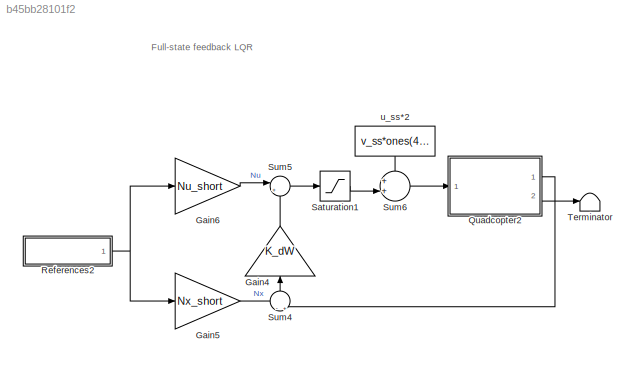
MODEL slx_b45bb28101f2
KIND model
CONFIG AbsTol = auto
CONFIG EnableMultiTasking = off
CONFIG FixedStep = auto
CONFIG MaxStep = auto
CONFIG MinStep = auto
CONFIG RelTol = 1e-3
CONFIG SampleTimeConstraint = Unconstrained
CONFIG Solver = VariableStepAuto
CONFIG SolverName = VariableStepAuto
CONFIG StartTime = 0.0
CONFIG StopTime = Tmax
BLOCK [Constant]  u_ss*2
  SampleTime = Ts
  Value = v_ss*ones(4,1)
BLOCK [Gain] Gain4
  Gain = K_dW
  Multiplication = Matrix(K*u)
  OutDataTypeStr = Inherit: Inherit via internal rule
  ParamDataTypeStr = Inherit: Inherit via internal rule
  SaturateOnIntegerOverflow = off
BLOCK [Gain] Gain5
  Gain = Nx_short
  Multiplication = Matrix(K*u)
  OutDataTypeStr = Inherit: Inherit via internal rule
  ParamDataTypeStr = Inherit: Inherit via internal rule
  SaturateOnIntegerOverflow = off
BLOCK [Gain] Gain6
  Gain = Nu_short
  Multiplication = Matrix(K*u)
  OutDataTypeStr = Inherit: Inherit via internal rule
  ParamDataTypeStr = Inherit: Inherit via internal rule
  SaturateOnIntegerOverflow = off
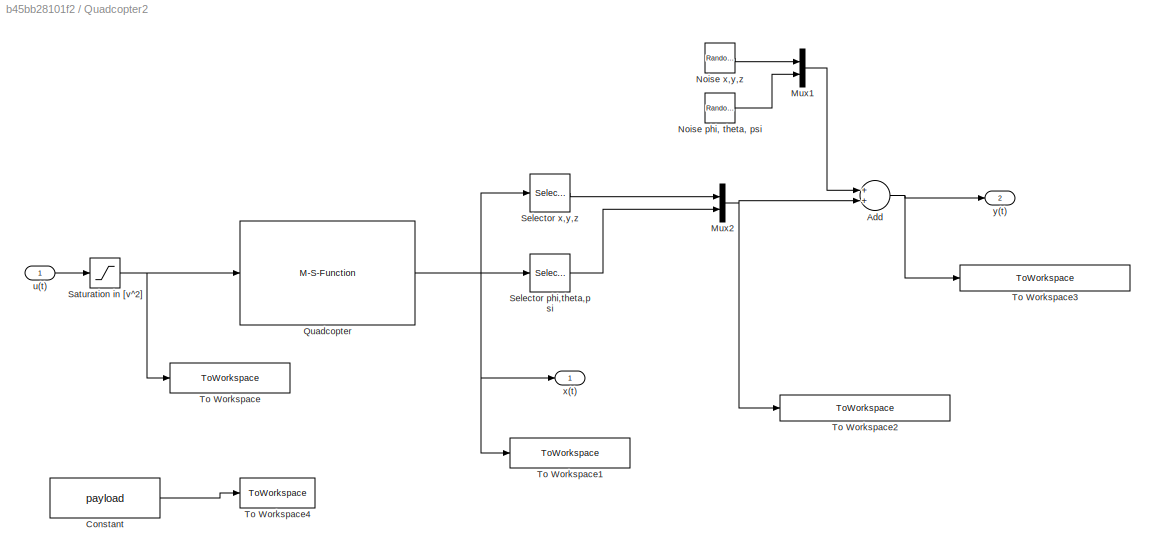
BLOCK [SubSystem] Quadcopter2
  Permissions = NoReadOrWrite
  Ports = [1, 2]
  RequestExecContextInheritance = off
BLOCK [Sum] Quadcopter2/Add
  InputSameDT = off
  OutDataTypeStr = Inherit: Inherit via internal rule
  Ports = [2, 1]
  SaturateOnIntegerOverflow = off
BLOCK [Constant] Quadcopter2/Constant
  Value = payload
BLOCK [Mux] Quadcopter2/Mux1
  DisplayOption = bar
  Inputs = 2
  Ports = [2, 1]
BLOCK [Mux] Quadcopter2/Mux2
  DisplayOption = bar
  Inputs = 2
  Ports = [2, 1]
BLOCK [RandomNumber] Quadcopter2/Noise  x,y,z
  SampleTime = 0.05
  Variance = [1 1 1]*(0.005)^2
BLOCK [RandomNumber] Quadcopter2/Noise phi, theta, psi
  SampleTime = 0.05
  Variance = [1 1 1]*(0.0087)^2
BLOCK [M-S-Function] Quadcopter2/Quadcopter
  FunctionName = quadcopter_sfunction
  Parameters = x0, payload
  Ports = [1, 1]
BLOCK [Saturate] Quadcopter2/Saturation in [v^2]
  InputPortMap = u0
  LowerLimit = 0
  Ports = [1, 1]
  UpperLimit = 100
BLOCK [Selector] Quadcopter2/Selector phi,theta,psi
  IndexOptions = Index vector (dialog)
  Indices = [7 8 9]
  OutputSizes = 1
  Ports = [1, 1]
BLOCK [Selector] Quadcopter2/Selector x,y,z
  IndexOptions = Index vector (dialog)
  Indices = [1 2 3]
  OutputSizes = 1
  Ports = [1, 1]
BLOCK [ToWorkspace] Quadcopter2/To Workspace
  MaxDataPoints = inf
  Ports = [1]
  SampleTime = -1
  SaveFormat = Structure With Time
  VariableName = inputs_quadcopter
BLOCK [ToWorkspace] Quadcopter2/To Workspace1
  MaxDataPoints = inf
  Ports = [1]
  SampleTime = -1
  SaveFormat = Structure With Time
  VariableName = states_quadcopter
BLOCK [ToWorkspace] Quadcopter2/To Workspace2
  MaxDataPoints = inf
  Ports = [1]
  SampleTime = -1
  SaveFormat = Structure With Time
  VariableName = outputs_quadcopter_nonoise
BLOCK [ToWorkspace] Quadcopter2/To Workspace3
  MaxDataPoints = inf
  Ports = [1]
  SampleTime = -1
  SaveFormat = Structure With Time
  VariableName = outputs_quadcopter_noise
BLOCK [ToWorkspace] Quadcopter2/To Workspace4
  MaxDataPoints = inf
  Ports = [1]
  SampleTime = -1
  VariableName = payload_quadcopter
BLOCK [Inport] Quadcopter2/u(t)
  IconDisplay = Port number
BLOCK [Outport] Quadcopter2/x(t)
  IconDisplay = Port number
BLOCK [Outport] Quadcopter2/y(t)
  IconDisplay = Port number
  Port = 2
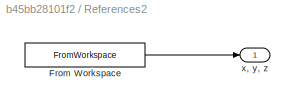
BLOCK [SubSystem] References2
  Permissions = NoReadOrWrite
  Ports = [0, 1]
  RequestExecContextInheritance = off
BLOCK [FromWorkspace] References2/From Workspace
  Interpolate = off
  OutputAfterFinalValue = Holding final value
  SampleTime = 0.1
  VariableName = references
  ZeroCross = on
BLOCK [Outport] References2/x, y, z
  IconDisplay = Port number
BLOCK [Saturate] Saturation1
  InputPortMap = u0
  LowerLimit = ones(4,1) * (- v_ss)
  Ports = [1, 1]
  UpperLimit = ones(4,1) * (100 - v_ss)
BLOCK [Sum] Sum4
  IconShape = round
  InputSameDT = off
  Inputs = -|+
  OutDataTypeStr = Inherit: Inherit via internal rule
  Ports = [2, 1]
  SaturateOnIntegerOverflow = off
BLOCK [Sum] Sum5
  IconShape = round
  InputSameDT = off
  Inputs = |+-
  OutDataTypeStr = Inherit: Inherit via internal rule
  Ports = [2, 1]
  SaturateOnIntegerOverflow = off
BLOCK [Sum] Sum6
  IconShape = round
  InputSameDT = off
  Inputs = ++|
  OutDataTypeStr = Inherit: Inherit via internal rule
  Ports = [2, 1]
  SaturateOnIntegerOverflow = off
BLOCK [Terminator] Terminator
ANNOTATION (root): Full-state feedback LQR
LINE  u_ss*2:1 -> Sum6:1
LINE Gain4:1 -> Sum5:2
LINE Gain5:1 -> Sum4:1
LINE Gain6:1 -> Sum5:1
NET Quadcopter2/Add:1 -> Quadcopter2/To Workspace3:1, Quadcopter2/y(t):1
LINE Quadcopter2/Constant:1 -> Quadcopter2/To Workspace4:1
LINE Quadcopter2/Mux1:1 -> Quadcopter2/Add:1
NET Quadcopter2/Mux2:1 -> Quadcopter2/Add:2, Quadcopter2/To Workspace2:1
LINE Quadcopter2/Noise  x,y,z:1 -> Quadcopter2/Mux1:1
LINE Quadcopter2/Noise phi, theta, psi:1 -> Quadcopter2/Mux1:2
NET Quadcopter2/Quadcopter:1 -> Quadcopter2/Selector phi,theta,psi:1, Quadcopter2/Selector x,y,z:1, Quadcopter2/To Workspace1:1, Quadcopter2/x(t):1
NET Quadcopter2/Saturation in [v^2]:1 -> Quadcopter2/Quadcopter:1, Quadcopter2/To Workspace:1
LINE Quadcopter2/Selector phi,theta,psi:1 -> Quadcopter2/Mux2:2
LINE Quadcopter2/Selector x,y,z:1 -> Quadcopter2/Mux2:1
LINE Quadcopter2/u(t):1 -> Quadcopter2/Saturation in [v^2]:1
LINE Quadcopter2:1 -> Sum4:2
LINE Quadcopter2:2 -> Terminator:1
LINE References2/From Workspace:1 -> References2/x, y, z:1
NET References2:1 -> Gain5:1, Gain6:1
LINE Saturation1:1 -> Sum6:2
LINE Sum4:1 -> Gain4:1
LINE Sum5:1 -> Saturation1:1
LINE Sum6:1 -> Quadcopter2:1
note: NET lines group one-source signal fan-out (src -> all destinations, sorted); 1:1 wires keep LINE
